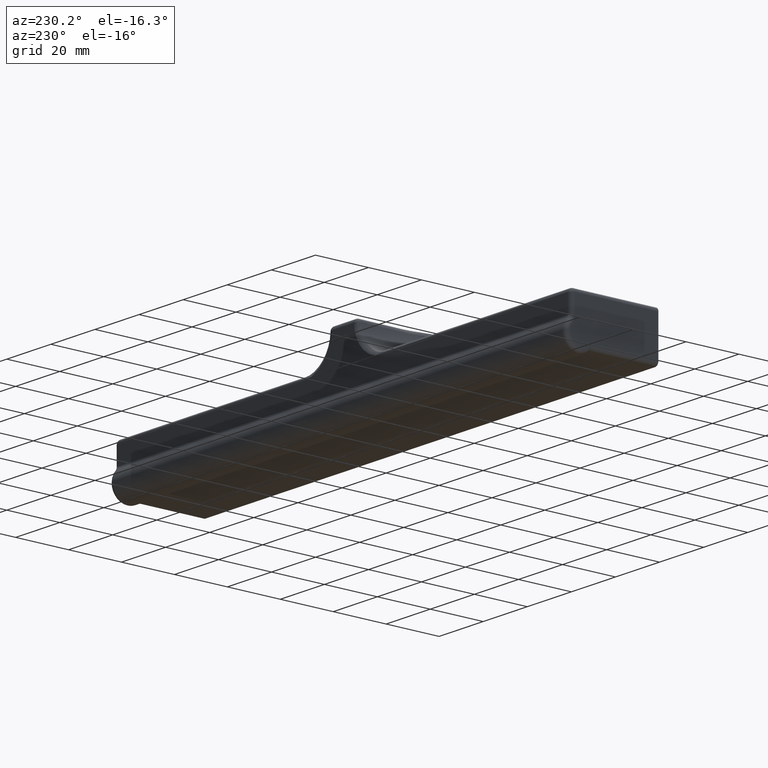
[diagram: clean part render]
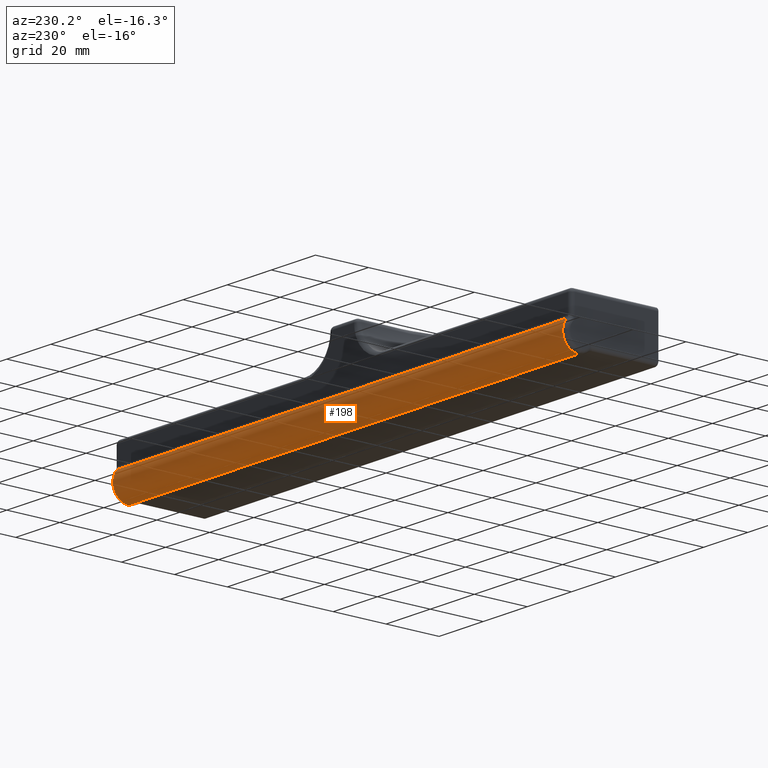
[diagram: same view with one face highlighted and labeled with its STEP entity id]
A machine part, auxiliary view. The second image highlights one B-rep face of the part: STEP entity #198.
In plain terms, the highlighted cylindrical surface (edge-blend (fillet) strip) has radius 6 mm, axis along (1, 0, 0).
Its self-contained STEP definition (entity closure, byte-faithful):
#198=ADVANCED_FACE('',(#413),#414,.T.);
#413=FACE_OUTER_BOUND('',#1532,.T.);
#414=CYLINDRICAL_SURFACE('',#1533,6.0);
#1532=EDGE_LOOP('',(#2577,#2578,#2579,#2580));
#1533=AXIS2_PLACEMENT_3D('',#2581,#2582,#2583);
#2577=ORIENTED_EDGE('',*,*,#2907,.T.);
#2578=ORIENTED_EDGE('',*,*,#2922,.T.);
#2579=ORIENTED_EDGE('',*,*,#3055,.T.);
#2580=ORIENTED_EDGE('',*,*,#2916,.T.);
#2581=CARTESIAN_POINT('',(105.0,28.9393398282202,-4.93933982822018));
#2582=DIRECTION('',(1.0,2.09750591841134E-31,1.80288795780629E-16));
#2583=DIRECTION('',(-1.80288795780629E-16,1.16341445918998E-15,1.0));
#2907=EDGE_CURVE('',#3214,#3215,#3216,.T.);
#2916=EDGE_CURVE('',#3232,#3214,#3233,.F.);
#2922=EDGE_CURVE('',#3215,#3241,#3243,.F.);
#3055=EDGE_CURVE('',#3241,#3232,#3461,.F.);
#3214=VERTEX_POINT('',#3761);
#3215=VERTEX_POINT('',#3762);
#3216=LINE('',#3763,#3764);
#3232=VERTEX_POINT('',#3783);
#3233=CIRCLE('',#3784,6.0);
#3241=VERTEX_POINT('',#3803);
#3243=CIRCLE('',#3816,6.0);
#3461=LINE('',#4814,#4815);
#3761=CARTESIAN_POINT('',(102.0,28.9393398282202,-10.9393398282202));
#3762=CARTESIAN_POINT('',(-102.0,28.9393398282202,-10.9393398282202));
#3763=CARTESIAN_POINT('',(-1.31291219405182E-14,28.9393398282202,-10.9393398282202));
#3764=VECTOR('',#5163,1.0);
#3783=CARTESIAN_POINT('',(102.0,33.3878679656441,-0.913101210037173));
#3784=AXIS2_PLACEMENT_3D('',#5182,#5183,#5184);
#3803=CARTESIAN_POINT('',(-102.0,33.3878679656441,-0.913101210037212));
#3816=AXIS2_PLACEMENT_3D('',#5194,#5195,#5196);
#4814=CARTESIAN_POINT('',(105.0,33.3878679656441,-0.913101210037187));
#4815=VECTOR('',#5304,1000.0);
#5163=DIRECTION('',(-1.0,-2.09750591841134E-31,-1.80288795780629E-16));
#5182=CARTESIAN_POINT('',(102.0,28.9393398282202,-4.93933982822018));
#5183=DIRECTION('',(1.0,2.09750591841134E-31,1.80288795780629E-16));
#5184=DIRECTION('',(1.80288795780629E-16,-1.16341445918998E-15,-1.0));
#5194=CARTESIAN_POINT('',(-102.0,28.9393398282202,-4.93933982822021));
#5195=DIRECTION('',(-1.0,-2.09750591841134E-31,-1.80288795780629E-16));
#5196=DIRECTION('',(-1.80288795780629E-16,1.16341445918998E-15,1.0));
#5304=DIRECTION('',(-1.0,-2.09750591841134E-31,-1.80288795780629E-16));